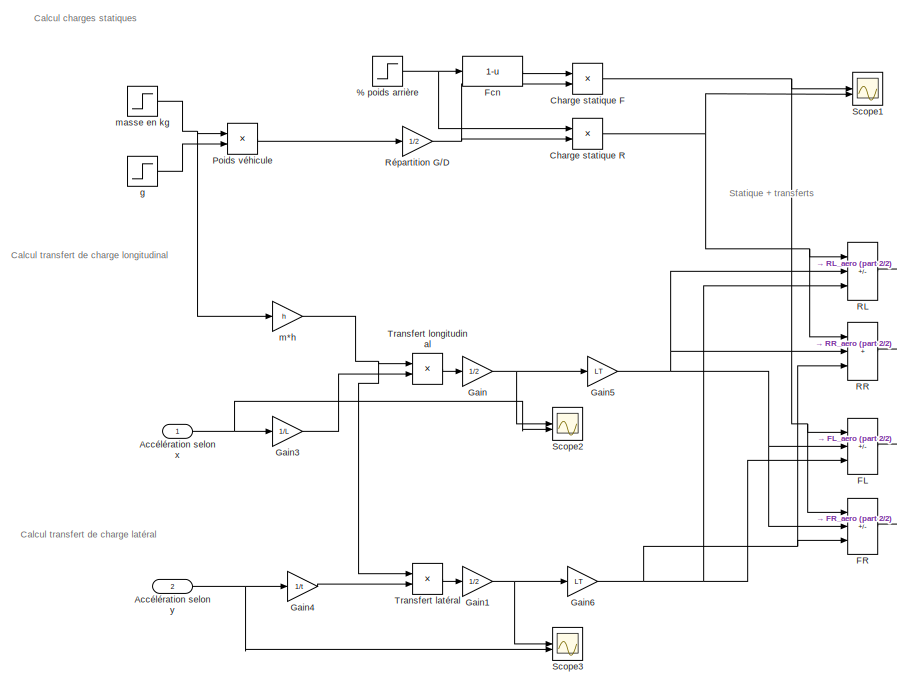
[diagram: root canvas - part 1/2, left side, full height]
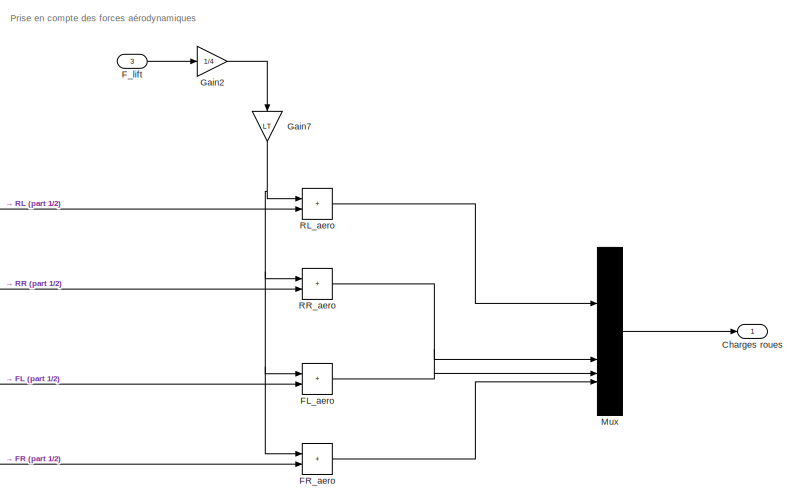
[diagram: root canvas - part 2/2, middle right region]
MODEL slx_770a4f51f9ae
KIND model
CONFIG AbsTol = auto
CONFIG EnableMultiTasking = off
CONFIG FixedStep = Ts
CONFIG MaxStep = auto
CONFIG MinStep = auto
CONFIG RelTol = 1e-3
CONFIG SampleTimeConstraint = Unconstrained
CONFIG SolverName = FixedStepAuto
CONFIG StartTime = 0.0
CONFIG StopTime = 10.0
BLOCK [Step] % poids arrière
  After = fr
  SampleTime = 0
  Time = 0
BLOCK [Inport] Accélération selon x
BLOCK [Inport] Accélération selon y
  Port = 2
BLOCK [Product] Charge statique F
BLOCK [Product] Charge statique R
BLOCK [Outport] Charges roues
BLOCK [Sum] FL
  IconShape = rectangular
  Inputs = +--
BLOCK [Sum] FL_aero
  IconShape = rectangular
BLOCK [Sum] FR
  IconShape = rectangular
  Inputs = +-+
BLOCK [Sum] FR_aero
  IconShape = rectangular
BLOCK [Inport] F_lift
  Port = 3
BLOCK [Fcn] Fcn
  Expr = 1-u
BLOCK [Gain] Gain
  Gain = 1/2
BLOCK [Gain] Gain1
  Gain = 1/2
BLOCK [Gain] Gain2
  Gain = 1/4
BLOCK [Gain] Gain3
  Gain = 1/L
BLOCK [Gain] Gain4
  Gain = 1/t
BLOCK [Gain] Gain5
  Gain = LT
BLOCK [Gain] Gain6
  Gain = LT
BLOCK [Gain] Gain7
  Gain = LT
  NameLocation = left
BLOCK [Mux] Mux
  DisplayOption = bar
BLOCK [Product] Poids véhicule
BLOCK [Sum] RL
  IconShape = rectangular
  Inputs = ++-
BLOCK [Sum] RL_aero
  IconShape = rectangular
BLOCK [Sum] RR
  IconShape = rectangular
  Inputs = +++
BLOCK [Sum] RR_aero
  IconShape = rectangular
BLOCK [Gain] Répartition G//D
  Gain = 1/2
BLOCK [Scope] Scope1
  Floating = off
  NumInputPorts = 2
  ScopeSpecificationString = Simulink.scopes.TimeScopeBlockCfg('CurrentConfiguration', extmgr.ConfigurationSet(extmgr.Configuration('Core','General UI',true),extmgr.Configuration('Core','Source UI',true),extmgr.Configuration('Sources','WiredSimulink',true,'DataLoggingVariableName','ScopeData1'),extmgr.Configuration('Visuals','Time Domain',true,'SerializedDisplays',{struct('MinYLimReal','515.025','MaxYLimReal','662.175','YLabe...<+1797ch>
BLOCK [Scope] Scope2
  Floating = off
  NumInputPorts = 2
  ScopeSpecificationString = Simulink.scopes.TimeScopeBlockCfg('CurrentConfiguration', extmgr.ConfigurationSet(extmgr.Configuration('Core','General UI',true),extmgr.Configuration('Core','Source UI',true),extmgr.Configuration('Sources','WiredSimulink',true,'DataLoggingVariableName','ScopeData2'),extmgr.Configuration('Visuals','Time Domain',true,'SerializedDisplays',{struct('MinYLimReal','-1.00000','MaxYLimReal','1.00000','YLab...<+2242ch>
BLOCK [Scope] Scope3
  Floating = off
  NumInputPorts = 2
  ScopeSpecificationString = Simulink.scopes.TimeScopeBlockCfg('CurrentConfiguration', extmgr.ConfigurationSet(extmgr.Configuration('Core','General UI',true),extmgr.Configuration('Core','Source UI',true),extmgr.Configuration('Sources','WiredSimulink',true,'DataLoggingVariableName','ScopeData3'),extmgr.Configuration('Visuals','Time Domain',true,'SerializedDisplays',{struct('MinYLimReal','415.025','MaxYLimReal','615.025','YLabe...<+2183ch>
BLOCK [Product] Transfert latéral
BLOCK [Product] Transfert longitudinal
BLOCK [Step] g
  After = g
  SampleTime = 0
  Time = 0
BLOCK [Gain] m*h
  Gain = h
BLOCK [Step] masse en kg
  After = m
  SampleTime = 0
  Time = 0
ANNOTATION (root): Calcul charges statiques
ANNOTATION (root): Calcul transfert de charge latéral
ANNOTATION (root): Calcul transfert de charge longitudinal
ANNOTATION (root): Prise en compte des forces aérodynamiques
ANNOTATION (root): Statique + transferts
NET % poids arrière:1 -> Charge statique R:1, Fcn:1
NET Accélération selon x:1 -> Gain3:1, Scope2:2
NET Accélération selon y:1 -> Gain4:1, Scope3:2
NET Charge statique F:1 -> FL:1, FR:1, Scope1:1
NET Charge statique R:1 -> RL:1, RR:1, Scope1:2
LINE FL:1 -> FL_aero:2
LINE FL_aero:1 -> Mux:3
LINE FR:1 -> FR_aero:2
LINE FR_aero:1 -> Mux:4
LINE F_lift:1 -> Gain2:1
LINE Fcn:1 -> Charge statique F:1
NET Gain1:1 -> Gain6:1, Scope3:1
LINE Gain2:1 -> Gain7:1
LINE Gain3:1 -> Transfert longitudinal:2
LINE Gain4:1 -> Transfert latéral:2
NET Gain5:1 -> FL:2, FR:2, RL:2, RR:2
NET Gain6:1 -> FL:3, FR:3, RL:3, RR:3
NET Gain7:1 -> FL_aero:1, FR_aero:1, RL_aero:1, RR_aero:1
NET Gain:1 -> Gain5:1, Scope2:1
LINE Mux:1 -> Charges roues:1
LINE Poids véhicule:1 -> Répartition G//D:1
LINE RL:1 -> RL_aero:2
LINE RL_aero:1 -> Mux:1
LINE RR:1 -> RR_aero:2
LINE RR_aero:1 -> Mux:2
NET Répartition G//D:1 -> Charge statique F:2, Charge statique R:2
LINE Transfert latéral:1 -> Gain1:1
LINE Transfert longitudinal:1 -> Gain:1
LINE g:1 -> Poids véhicule:2
NET m*h:1 -> Transfert latéral:1, Transfert longitudinal:1
NET masse en kg:1 -> Poids véhicule:1, m*h:1
note: NET lines group one-source signal fan-out (src -> all destinations, sorted); 1:1 wires keep LINE
